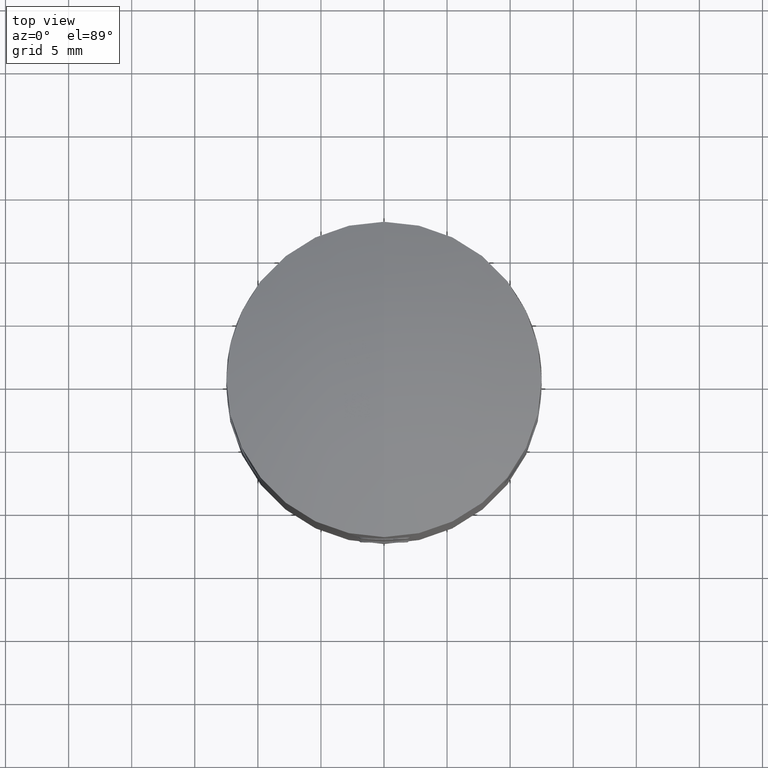
[diagram: clean part render]
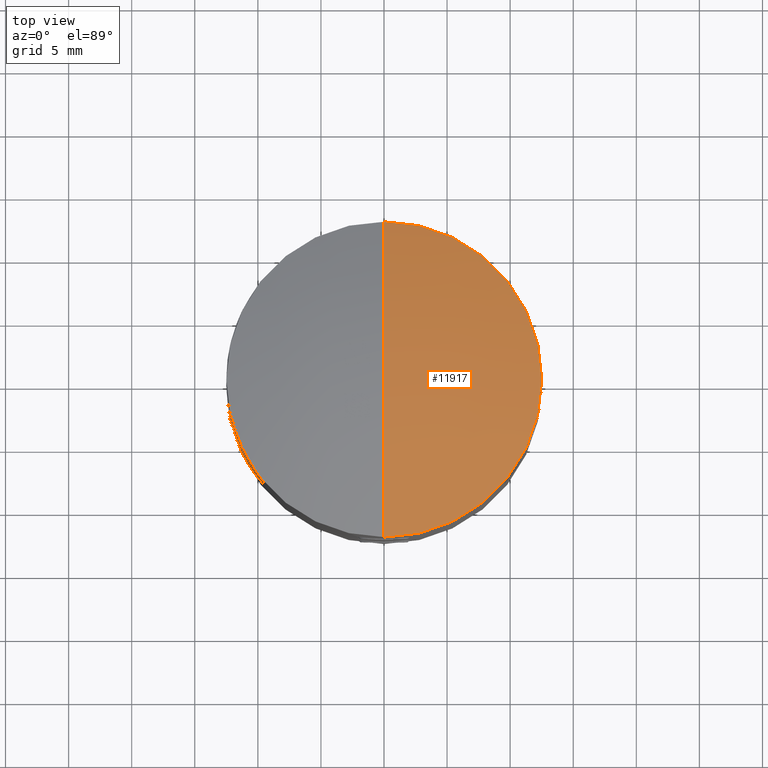
[diagram: same view with one face highlighted and labeled with its STEP entity id]
A machine part, top view. The second image highlights one B-rep face of the part: STEP entity #11917.
In plain terms, the highlighted spherical surface has radius 37 mm.
Its self-contained STEP definition (entity closure, byte-faithful):
#834 = CARTESIAN_POINT ( 'NONE',  ( 0.000000000000000000, 0.000000000000000000, -7.500000000000000000 ) ) ;
#2102 = VERTEX_POINT ( 'NONE', #4783 ) ;
#2697 = CARTESIAN_POINT ( 'NONE',  ( 0.000000000000000000, 0.000000000000000000, -7.500000000000000000 ) ) ;
#2831 = EDGE_CURVE ( 'NONE', #13838, #19150, #16391, .T. ) ;
#3142 = DIRECTION ( 'NONE',  ( 0.000000000000000000, 0.000000000000000000, 1.000000000000000000 ) ) ;
#4783 = CARTESIAN_POINT ( 'NONE',  ( 1.530808498934191916E-15, -12.50000000000000355, 27.32456029873169356 ) ) ;
#5709 = ORIENTED_EDGE ( 'NONE', *, *, #19823, .F. ) ;
#5725 = DIRECTION ( 'NONE',  ( 1.000000000000000000, 1.224646799147353207E-16, 1.708422013293072603E-32 ) ) ;
#5802 = ORIENTED_EDGE ( 'NONE', *, *, #9304, .T. ) ;
#6426 = DIRECTION ( 'NONE',  ( -1.000000000000000000, 0.000000000000000000, 0.000000000000000000 ) ) ;
#6583 = CIRCLE ( 'NONE', #16013, 37.00000000000000000 ) ;
#7396 = DIRECTION ( 'NONE',  ( 0.000000000000000000, 1.000000000000000000, 2.775557561562891351E-16 ) ) ;
#7707 = CARTESIAN_POINT ( 'NONE',  ( 0.000000000000000000, 0.000000000000000000, -7.500000000000000000 ) ) ;
#7782 = SPHERICAL_SURFACE ( 'NONE', #17287, 37.00000000000000000 ) ;
#8480 = AXIS2_PLACEMENT_3D ( 'NONE', #14896, #19536, #7396 ) ;
#8861 = CARTESIAN_POINT ( 'NONE',  ( 0.000000000000000000, -2.896023452418457658E-15, 29.50000000000000000 ) ) ;
#9304 = EDGE_CURVE ( 'NONE', #13838, #2102, #6583, .T. ) ;
#9716 = CARTESIAN_POINT ( 'NONE',  ( 0.000000000000000000, 12.49999999999999822, 27.32456029873170067 ) ) ;
#10264 = ORIENTED_EDGE ( 'NONE', *, *, #2831, .F. ) ;
#11910 = EDGE_LOOP ( 'NONE', ( #10264, #5802, #5709 ) ) ;
#11917 = ADVANCED_FACE ( 'NONE', ( #17675 ), #7782, .T. ) ;
#13221 = DIRECTION ( 'NONE',  ( 0.000000000000000000, 1.000000000000000000, 1.406532548089303043E-16 ) ) ;
#13838 = VERTEX_POINT ( 'NONE', #8861 ) ;
#14896 = CARTESIAN_POINT ( 'NONE',  ( 0.000000000000000000, -1.300806411262671261E-15, 27.32456029873169712 ) ) ;
#15107 = DIRECTION ( 'NONE',  ( -1.224646799147353207E-16, 1.000000000000000000, 0.000000000000000000 ) ) ;
#15276 = CIRCLE ( 'NONE', #8480, 12.50000000000000000 ) ;
#16013 = AXIS2_PLACEMENT_3D ( 'NONE', #2697, #5725, #15107 ) ;
#16382 = DIRECTION ( 'NONE',  ( 1.000000000000000000, 0.000000000000000000, -0.000000000000000000 ) ) ;
#16391 = CIRCLE ( 'NONE', #18784, 37.00000000000000000 ) ;
#17287 = AXIS2_PLACEMENT_3D ( 'NONE', #834, #16382, #13221 ) ;
#17675 = FACE_OUTER_BOUND ( 'NONE', #11910, .T. ) ;
#18784 = AXIS2_PLACEMENT_3D ( 'NONE', #7707, #6426, #3142 ) ;
#19150 = VERTEX_POINT ( 'NONE', #9716 ) ;
#19536 = DIRECTION ( 'NONE',  ( -0.000000000000000000, 1.395032440767854392E-16, -1.000000000000000000 ) ) ;
#19823 = EDGE_CURVE ( 'NONE', #19150, #2102, #15276, .T. ) ;